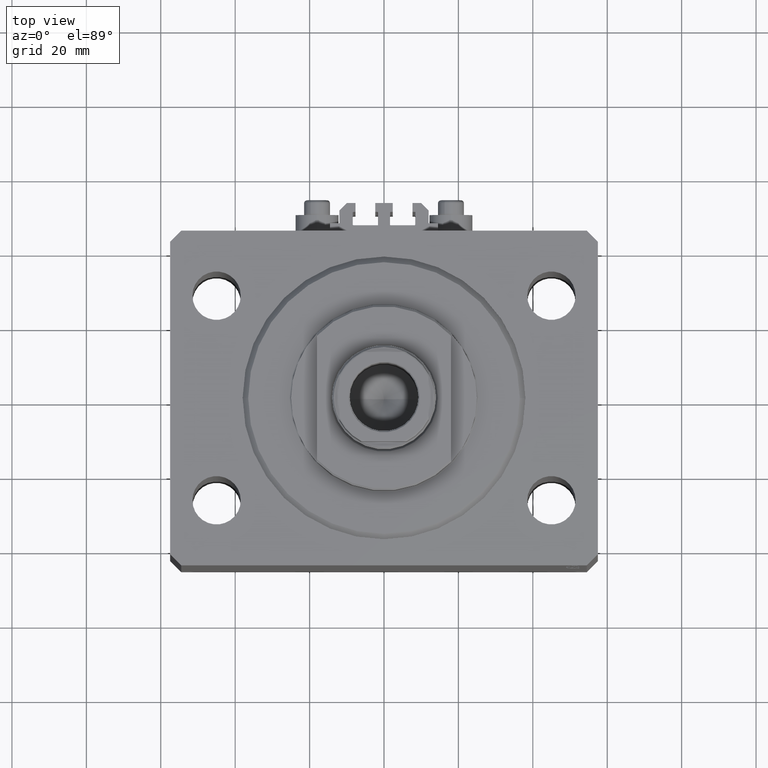
[diagram: clean part render]
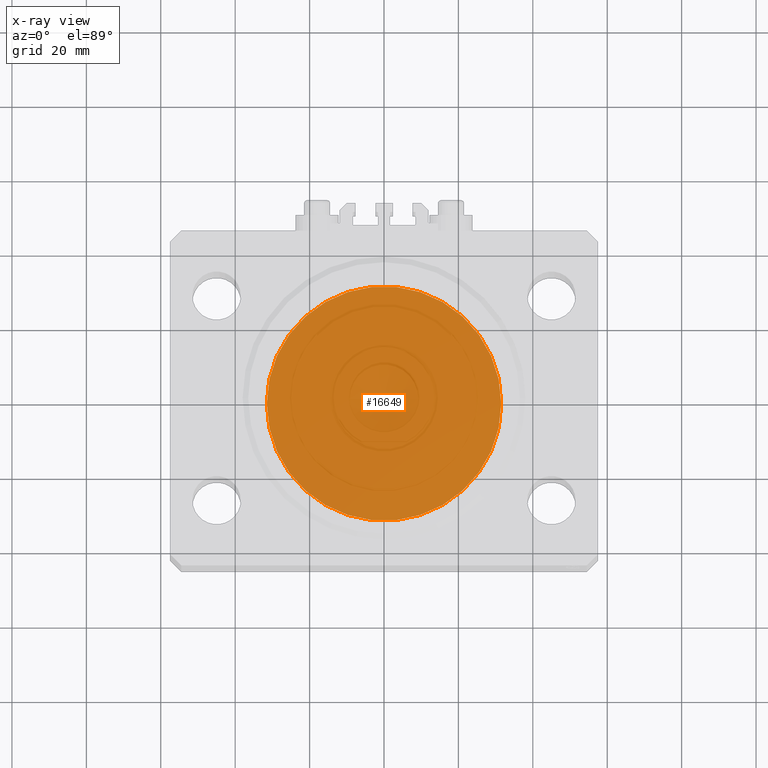
[diagram: x-ray — body ghosted, one internal face saturated and labeled with its STEP entity id]
A machine part, top view, then the same camera in x-ray: the body is ghosted and one INTERNAL B-rep face — a face not visible from any outside direction — is saturated and labeled: STEP entity #16649.
In plain terms, the highlighted planar face has unit normal (0, 0, 1).
Its self-contained STEP definition (entity closure, byte-faithful):
#237 = EDGE_CURVE ( 'NONE', #43382, #27217, #559, .T. ) ;
#559 = CIRCLE ( 'NONE', #10509, 31.50000000000000000 ) ;
#2077 = CARTESIAN_POINT ( 'NONE',  ( 0.000000000000000000, 0.000000000000000000, 0.000000000000000000 ) ) ;
#7010 = ORIENTED_EDGE ( 'NONE', *, *, #16763, .F. ) ;
#10440 = DIRECTION ( 'NONE',  ( 1.000000000000000000, 0.000000000000000000, 0.000000000000000000 ) ) ;
#10509 = AXIS2_PLACEMENT_3D ( 'NONE', #2077, #16907, #10440 ) ;
#16649 = ADVANCED_FACE ( 'NONE', ( #20972 ), #20737, .F. ) ;
#16763 = EDGE_CURVE ( 'NONE', #27217, #43382, #29906, .T. ) ;
#16907 = DIRECTION ( 'NONE',  ( 0.000000000000000000, 0.000000000000000000, 1.000000000000000000 ) ) ;
#17143 = CARTESIAN_POINT ( 'NONE',  ( 31.50000000000000000, 3.857637417314162689E-15, 0.000000000000000000 ) ) ;
#18109 = CARTESIAN_POINT ( 'NONE',  ( 0.000000000000000000, 0.000000000000000000, 0.000000000000000000 ) ) ;
#18475 = AXIS2_PLACEMENT_3D ( 'NONE', #25521, #33876, #44410 ) ;
#19221 = AXIS2_PLACEMENT_3D ( 'NONE', #18109, #42525, #24332 ) ;
#20456 = ORIENTED_EDGE ( 'NONE', *, *, #237, .F. ) ;
#20737 = PLANE ( 'NONE',  #19221 ) ;
#20972 = FACE_OUTER_BOUND ( 'NONE', #41885, .T. ) ;
#24332 = DIRECTION ( 'NONE',  ( 1.000000000000000000, 0.000000000000000000, -0.000000000000000000 ) ) ;
#25521 = CARTESIAN_POINT ( 'NONE',  ( 0.000000000000000000, 0.000000000000000000, 0.000000000000000000 ) ) ;
#27217 = VERTEX_POINT ( 'NONE', #34442 ) ;
#29906 = CIRCLE ( 'NONE', #18475, 31.50000000000000000 ) ;
#33876 = DIRECTION ( 'NONE',  ( 0.000000000000000000, 0.000000000000000000, 1.000000000000000000 ) ) ;
#34442 = CARTESIAN_POINT ( 'NONE',  ( -31.50000000000000000, 0.000000000000000000, 0.000000000000000000 ) ) ;
#41885 = EDGE_LOOP ( 'NONE', ( #7010, #20456 ) ) ;
#42525 = DIRECTION ( 'NONE',  ( 0.000000000000000000, 0.000000000000000000, 1.000000000000000000 ) ) ;
#43382 = VERTEX_POINT ( 'NONE', #17143 ) ;
#44410 = DIRECTION ( 'NONE',  ( 1.000000000000000000, 0.000000000000000000, 0.000000000000000000 ) ) ;